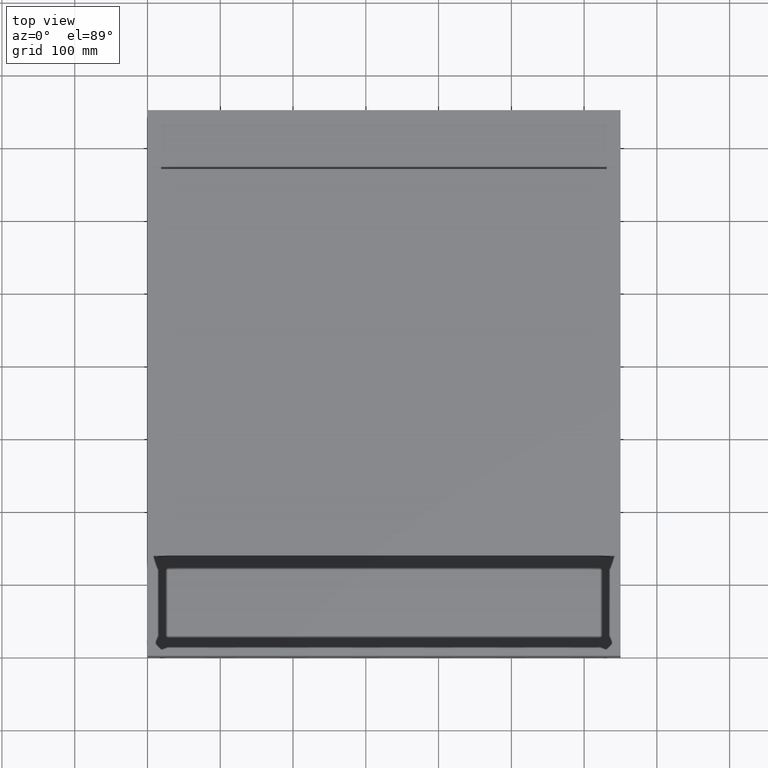
[diagram: clean part render]
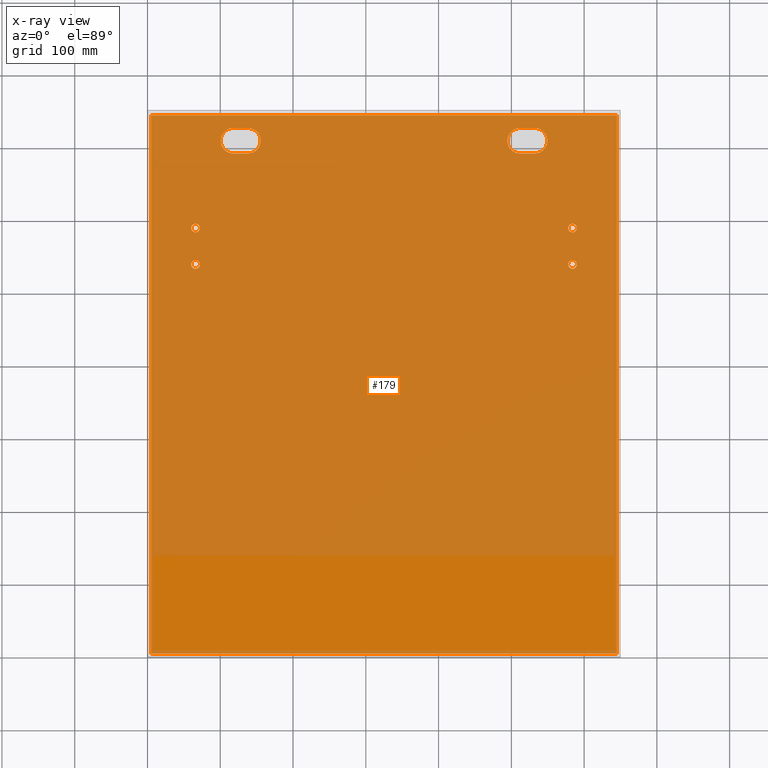
[diagram: x-ray — body ghosted, one internal face saturated and labeled with its STEP entity id]
A machine part, top view, then the same camera in x-ray: the body is ghosted and one INTERNAL B-rep face — a face not visible from any outside direction — is saturated and labeled: STEP entity #179.
In plain terms, the highlighted planar face has unit normal (0, 0, -1).
Its self-contained STEP definition (entity closure, byte-faithful):
#2 = EDGE_LOOP ( 'NONE', ( #342, #5550 ) ) ;
#179 = ADVANCED_FACE ( 'NONE', ( #2171, #5646, #9159, #1303, #4799, #8285, #430 ), #3931, .F. ) ;
#185 = EDGE_CURVE ( 'NONE', #1880, #5691, #6563, .T. ) ;
#205 = CARTESIAN_POINT ( 'NONE',  ( 531.9999999999997726, 692.4999000000001388, -124.9999999999999432 ) ) ;
#288 = LINE ( 'NONE', #3772, #625 ) ;
#342 = ORIENTED_EDGE ( 'NONE', *, *, #2435, .F. ) ;
#344 = CARTESIAN_POINT ( 'NONE',  ( 118.0000000000001990, 709.9999000000000251, -124.9999999999999432 ) ) ;
#370 = DIRECTION ( 'NONE',  ( -1.000000000000000000, 0.0000000000000000000, 0.0000000000000000000 ) ) ;
#375 = VERTEX_POINT ( 'NONE', #6046 ) ;
#430 = FACE_OUTER_BOUND ( 'NONE', #9754, .T. ) ;
#563 = CARTESIAN_POINT ( 'NONE',  ( 118.0000000000001990, 709.9999000000000251, -124.9999999999999432 ) ) ;
#625 = VECTOR ( 'NONE', #7269, 1000.000000000000000 ) ;
#634 = VECTOR ( 'NONE', #2220, 1000.000000000000000 ) ;
#672 = VECTOR ( 'NONE', #6943, 1000.000000000000000 ) ;
#703 = AXIS2_PLACEMENT_3D ( 'NONE', #563, #4052, #7551 ) ;
#717 = CARTESIAN_POINT ( 'NONE',  ( 531.9999999999997726, 709.9999000000000251, -124.9999999999999432 ) ) ;
#751 = CARTESIAN_POINT ( 'NONE',  ( 584.0000000000001137, 589.9999000000000251, -124.9999999999999432 ) ) ;
#762 = LINE ( 'NONE', #4259, #7948 ) ;
#804 = EDGE_CURVE ( 'NONE', #3519, #8852, #762, .T. ) ;
#887 = DIRECTION ( 'NONE',  ( -1.000000000000000000, 0.0000000000000000000, 0.0000000000000000000 ) ) ;
#890 = LINE ( 'NONE', #4386, #7700 ) ;
#951 = CARTESIAN_POINT ( 'NONE',  ( 118.0000000000001990, 727.4999000000001388, -124.9999999999999432 ) ) ;
#1038 = ORIENTED_EDGE ( 'NONE', *, *, #1102, .F. ) ;
#1049 = CARTESIAN_POINT ( 'NONE',  ( 66.00000000000004263, 539.9999000000000251, -124.9999999999999432 ) ) ;
#1057 = CIRCLE ( 'NONE', #2531, 6.000000000000005329 ) ;
#1102 = EDGE_CURVE ( 'NONE', #375, #5691, #288, .T. ) ;
#1145 = CARTESIAN_POINT ( 'NONE',  ( 66.00000000000004263, 589.9999000000000251, -124.9999999999999432 ) ) ;
#1222 = VECTOR ( 'NONE', #5102, 1000.000000000000000 ) ;
#1261 = ORIENTED_EDGE ( 'NONE', *, *, #6304, .F. ) ;
#1303 = FACE_BOUND ( 'NONE', #5128, .T. ) ;
#1304 = DIRECTION ( 'NONE',  ( -0.0000000000000000000, -0.0000000000000000000, 1.000000000000000000 ) ) ;
#1379 = DIRECTION ( 'NONE',  ( -1.000000000000000000, 0.0000000000000000000, 0.0000000000000000000 ) ) ;
#1430 = AXIS2_PLACEMENT_3D ( 'NONE', #1049, #4543, #8035 ) ;
#1484 = AXIS2_PLACEMENT_3D ( 'NONE', #5246, #8751, #887 ) ;
#1606 = ORIENTED_EDGE ( 'NONE', *, *, #6949, .F. ) ;
#1612 = CARTESIAN_POINT ( 'NONE',  ( 118.0000000000002274, 692.4999000000001388, -124.9999999999999432 ) ) ;
#1880 = VERTEX_POINT ( 'NONE', #8261 ) ;
#1931 = CIRCLE ( 'NONE', #8326, 6.000000000000019540 ) ;
#2033 = EDGE_CURVE ( 'NONE', #2711, #5774, #2467, .T. ) ;
#2171 = FACE_BOUND ( 'NONE', #9114, .T. ) ;
#2220 = DIRECTION ( 'NONE',  ( 1.000000000000000000, 0.0000000000000000000, 0.0000000000000000000 ) ) ;
#2254 = CARTESIAN_POINT ( 'NONE',  ( 5.000000000000004441, 744.9999000000000251, -124.9999999999999432 ) ) ;
#2295 = CIRCLE ( 'NONE', #8716, 6.000000000000005329 ) ;
#2380 = VERTEX_POINT ( 'NONE', #10987 ) ;
#2391 = DIRECTION ( 'NONE',  ( -0.0000000000000000000, -0.0000000000000000000, 1.000000000000000000 ) ) ;
#2415 = DIRECTION ( 'NONE',  ( -0.0000000000000000000, -0.0000000000000000000, 1.000000000000000000 ) ) ;
#2435 = EDGE_CURVE ( 'NONE', #11115, #2917, #3007, .T. ) ;
#2467 = CIRCLE ( 'NONE', #8869, 17.49999999999996092 ) ;
#2481 = DIRECTION ( 'NONE',  ( -0.0000000000000000000, -0.0000000000000000000, 1.000000000000000000 ) ) ;
#2531 = AXIS2_PLACEMENT_3D ( 'NONE', #751, #4248, #7738 ) ;
#2554 = DIRECTION ( 'NONE',  ( -0.0000000000000000000, -0.0000000000000000000, 1.000000000000000000 ) ) ;
#2571 = CARTESIAN_POINT ( 'NONE',  ( 578.0000000000001137, 539.9999000000000251, -124.9999999999999432 ) ) ;
#2624 = EDGE_CURVE ( 'NONE', #5774, #8456, #8045, .T. ) ;
#2711 = VERTEX_POINT ( 'NONE', #3856 ) ;
#2884 = AXIS2_PLACEMENT_3D ( 'NONE', #10412, #2554, #6040 ) ;
#2917 = VERTEX_POINT ( 'NONE', #8630 ) ;
#3007 = CIRCLE ( 'NONE', #9422, 6.000000000000019540 ) ;
#3024 = EDGE_CURVE ( 'NONE', #3623, #5744, #1931, .T. ) ;
#3043 = VERTEX_POINT ( 'NONE', #6421 ) ;
#3075 = DIRECTION ( 'NONE',  ( -1.000000000000000000, 0.0000000000000000000, -0.0000000000000000000 ) ) ;
#3088 = ORIENTED_EDGE ( 'NONE', *, *, #9605, .F. ) ;
#3149 = EDGE_CURVE ( 'NONE', #5888, #8588, #2295, .T. ) ;
#3253 = CARTESIAN_POINT ( 'NONE',  ( 60.00000000000002842, 589.9999000000000251, -124.9999999999999432 ) ) ;
#3294 = VERTEX_POINT ( 'NONE', #8718 ) ;
#3327 = CIRCLE ( 'NONE', #9734, 17.49999999999996092 ) ;
#3441 = CIRCLE ( 'NONE', #9842, 17.49999999999996092 ) ;
#3455 = ORIENTED_EDGE ( 'NONE', *, *, #185, .T. ) ;
#3460 = CARTESIAN_POINT ( 'NONE',  ( 5.000000000000004441, 1386.199868759761557, -124.9999999999999432 ) ) ;
#3510 = ORIENTED_EDGE ( 'NONE', *, *, #4199, .T. ) ;
#3519 = VERTEX_POINT ( 'NONE', #9164 ) ;
#3623 = VERTEX_POINT ( 'NONE', #3253 ) ;
#3693 = DIRECTION ( 'NONE',  ( 1.000000000000000000, 0.0000000000000000000, 0.0000000000000000000 ) ) ;
#3772 = CARTESIAN_POINT ( 'NONE',  ( 645.0000000000000000, 1386.199868759761557, -124.9999999999999432 ) ) ;
#3803 = CARTESIAN_POINT ( 'NONE',  ( 5.000000000000004441, 744.9999000000000251, -124.9999999999999432 ) ) ;
#3836 = DIRECTION ( 'NONE',  ( -0.0000000000000000000, -0.0000000000000000000, 1.000000000000000000 ) ) ;
#3856 = CARTESIAN_POINT ( 'NONE',  ( 494.4999999999998295, 709.9999000000000251, -124.9999999999999432 ) ) ;
#3886 = VERTEX_POINT ( 'NONE', #3803 ) ;
#3931 = PLANE ( 'NONE',  #7581 ) ;
#4047 = CARTESIAN_POINT ( 'NONE',  ( 72.00000000000005684, 589.9999000000000251, -124.9999999999999432 ) ) ;
#4052 = DIRECTION ( 'NONE',  ( -0.0000000000000000000, -0.0000000000000000000, 1.000000000000000000 ) ) ;
#4055 = ORIENTED_EDGE ( 'NONE', *, *, #3149, .F. ) ;
#4199 = EDGE_CURVE ( 'NONE', #3886, #1880, #11303, .T. ) ;
#4208 = DIRECTION ( 'NONE',  ( -0.0000000000000000000, -0.0000000000000000000, 1.000000000000000000 ) ) ;
#4248 = DIRECTION ( 'NONE',  ( -0.0000000000000000000, -0.0000000000000000000, 1.000000000000000000 ) ) ;
#4259 = CARTESIAN_POINT ( 'NONE',  ( 531.9999999999997726, 727.4999000000001388, -124.9999999999999432 ) ) ;
#4386 = CARTESIAN_POINT ( 'NONE',  ( 118.0000000000002274, 727.4999000000001388, -124.9999999999999432 ) ) ;
#4392 = EDGE_LOOP ( 'NONE', ( #4055, #3088 ) ) ;
#4543 = DIRECTION ( 'NONE',  ( -0.0000000000000000000, -0.0000000000000000000, 1.000000000000000000 ) ) ;
#4602 = EDGE_CURVE ( 'NONE', #9411, #4919, #9458, .T. ) ;
#4643 = DIRECTION ( 'NONE',  ( -0.0000000000000000000, -0.0000000000000000000, 1.000000000000000000 ) ) ;
#4730 = CARTESIAN_POINT ( 'NONE',  ( 66.00000000000004263, 589.9999000000000251, -124.9999999999999432 ) ) ;
#4799 = FACE_BOUND ( 'NONE', #2, .T. ) ;
#4800 = DIRECTION ( 'NONE',  ( -1.000000000000000000, 0.0000000000000000000, 0.0000000000000000000 ) ) ;
#4854 = EDGE_CURVE ( 'NONE', #2917, #11115, #6356, .T. ) ;
#4919 = VERTEX_POINT ( 'NONE', #8209 ) ;
#4952 = AXIS2_PLACEMENT_3D ( 'NONE', #9160, #1304, #4800 ) ;
#4989 = EDGE_CURVE ( 'NONE', #375, #3886, #10110, .T. ) ;
#5102 = DIRECTION ( 'NONE',  ( 1.000000000000000000, 0.0000000000000000000, 0.0000000000000000000 ) ) ;
#5108 = CARTESIAN_POINT ( 'NONE',  ( 531.9999999999997726, 692.4999000000001388, -124.9999999999999432 ) ) ;
#5128 = EDGE_LOOP ( 'NONE', ( #1261, #6467 ) ) ;
#5246 = CARTESIAN_POINT ( 'NONE',  ( 138.0000000000001990, 709.9999000000000251, -124.9999999999999432 ) ) ;
#5250 = AXIS2_PLACEMENT_3D ( 'NONE', #10273, #2415, #5895 ) ;
#5266 = CARTESIAN_POINT ( 'NONE',  ( 118.0000000000001990, 692.4999000000001388, -124.9999999999999432 ) ) ;
#5550 = ORIENTED_EDGE ( 'NONE', *, *, #4854, .F. ) ;
#5586 = EDGE_CURVE ( 'NONE', #8852, #2711, #10195, .T. ) ;
#5605 = EDGE_LOOP ( 'NONE', ( #6924, #10378, #1606, #11169, #10206 ) ) ;
#5629 = CIRCLE ( 'NONE', #703, 17.49999999999996092 ) ;
#5646 = FACE_BOUND ( 'NONE', #5605, .T. ) ;
#5691 = VERTEX_POINT ( 'NONE', #8779 ) ;
#5718 = CARTESIAN_POINT ( 'NONE',  ( 584.0000000000001137, 539.9999000000000251, -124.9999999999999432 ) ) ;
#5733 = DIRECTION ( 'NONE',  ( -1.000000000000000000, 0.0000000000000000000, 0.0000000000000000000 ) ) ;
#5744 = VERTEX_POINT ( 'NONE', #4047 ) ;
#5749 = VECTOR ( 'NONE', #3693, 1000.000000000000000 ) ;
#5774 = VERTEX_POINT ( 'NONE', #7604 ) ;
#5876 = DIRECTION ( 'NONE',  ( -1.000000000000000000, 0.0000000000000000000, 0.0000000000000000000 ) ) ;
#5888 = VERTEX_POINT ( 'NONE', #2571 ) ;
#5895 = DIRECTION ( 'NONE',  ( -1.000000000000000000, 0.0000000000000000000, 0.0000000000000000000 ) ) ;
#5965 = DIRECTION ( 'NONE',  ( -1.000000000000000000, 0.0000000000000000000, 0.0000000000000000000 ) ) ;
#6023 = AXIS2_PLACEMENT_3D ( 'NONE', #4730, #8222, #370 ) ;
#6040 = DIRECTION ( 'NONE',  ( -1.000000000000000000, 0.0000000000000000000, 0.0000000000000000000 ) ) ;
#6046 = CARTESIAN_POINT ( 'NONE',  ( 645.0000000000000000, 744.9999000000000251, -124.9999999999999432 ) ) ;
#6192 = ORIENTED_EDGE ( 'NONE', *, *, #4989, .T. ) ;
#6285 = EDGE_CURVE ( 'NONE', #8456, #3519, #3441, .T. ) ;
#6304 = EDGE_CURVE ( 'NONE', #3043, #6462, #7823, .T. ) ;
#6356 = CIRCLE ( 'NONE', #1430, 6.000000000000019540 ) ;
#6418 = CIRCLE ( 'NONE', #1484, 17.49999999999996092 ) ;
#6421 = CARTESIAN_POINT ( 'NONE',  ( 578.0000000000001137, 589.9999000000000251, -124.9999999999999432 ) ) ;
#6462 = VERTEX_POINT ( 'NONE', #10042 ) ;
#6467 = ORIENTED_EDGE ( 'NONE', *, *, #6636, .F. ) ;
#6563 = LINE ( 'NONE', #10069, #634 ) ;
#6636 = EDGE_CURVE ( 'NONE', #6462, #3043, #1057, .T. ) ;
#6688 = CARTESIAN_POINT ( 'NONE',  ( 590.0000000000001137, 539.9999000000000251, -124.9999999999999432 ) ) ;
#6924 = ORIENTED_EDGE ( 'NONE', *, *, #4602, .F. ) ;
#6943 = DIRECTION ( 'NONE',  ( -0.0000000000000000000, -1.000000000000000000, -0.0000000000000000000 ) ) ;
#6949 = EDGE_CURVE ( 'NONE', #11057, #3294, #5629, .T. ) ;
#7093 = ORIENTED_EDGE ( 'NONE', *, *, #804, .F. ) ;
#7172 = ORIENTED_EDGE ( 'NONE', *, *, #6285, .F. ) ;
#7269 = DIRECTION ( 'NONE',  ( -0.0000000000000000000, -1.000000000000000000, -0.0000000000000000000 ) ) ;
#7324 = DIRECTION ( 'NONE',  ( -1.000000000000000000, 0.0000000000000000000, 0.0000000000000000000 ) ) ;
#7418 = CARTESIAN_POINT ( 'NONE',  ( 5.000000000000004441, 1386.199868759761557, -124.9999999999999432 ) ) ;
#7551 = DIRECTION ( 'NONE',  ( -1.000000000000000000, 0.0000000000000000000, 0.0000000000000000000 ) ) ;
#7581 = AXIS2_PLACEMENT_3D ( 'NONE', #7418, #10931, #3075 ) ;
#7604 = CARTESIAN_POINT ( 'NONE',  ( 511.9999999999997726, 692.4999000000001388, -124.9999999999999432 ) ) ;
#7700 = VECTOR ( 'NONE', #7886, 1000.000000000000000 ) ;
#7702 = DIRECTION ( 'NONE',  ( -1.000000000000000000, 0.0000000000000000000, 0.0000000000000000000 ) ) ;
#7720 = ORIENTED_EDGE ( 'NONE', *, *, #2624, .F. ) ;
#7738 = DIRECTION ( 'NONE',  ( -1.000000000000000000, 0.0000000000000000000, 0.0000000000000000000 ) ) ;
#7747 = DIRECTION ( 'NONE',  ( -1.000000000000000000, 0.0000000000000000000, 0.0000000000000000000 ) ) ;
#7823 = CIRCLE ( 'NONE', #2884, 6.000000000000005329 ) ;
#7886 = DIRECTION ( 'NONE',  ( -1.000000000000000000, 0.0000000000000000000, 0.0000000000000000000 ) ) ;
#7948 = VECTOR ( 'NONE', #7747, 1000.000000000000000 ) ;
#8012 = EDGE_CURVE ( 'NONE', #5744, #3623, #10969, .T. ) ;
#8035 = DIRECTION ( 'NONE',  ( -1.000000000000000000, 0.0000000000000000000, 0.0000000000000000000 ) ) ;
#8045 = LINE ( 'NONE', #205, #5749 ) ;
#8132 = DIRECTION ( 'NONE',  ( -1.000000000000000000, 0.0000000000000000000, 0.0000000000000000000 ) ) ;
#8209 = CARTESIAN_POINT ( 'NONE',  ( 138.0000000000001990, 692.4999000000000251, -124.9999999999999432 ) ) ;
#8222 = DIRECTION ( 'NONE',  ( -0.0000000000000000000, -0.0000000000000000000, 1.000000000000000000 ) ) ;
#8261 = CARTESIAN_POINT ( 'NONE',  ( 5.000000000000004441, 5.000000000000000000, -124.9999999999999432 ) ) ;
#8285 = FACE_BOUND ( 'NONE', #9571, .T. ) ;
#8326 = AXIS2_PLACEMENT_3D ( 'NONE', #1145, #4643, #8132 ) ;
#8456 = VERTEX_POINT ( 'NONE', #5108 ) ;
#8588 = VERTEX_POINT ( 'NONE', #6688 ) ;
#8630 = CARTESIAN_POINT ( 'NONE',  ( 72.00000000000005684, 539.9999000000000251, -124.9999999999999432 ) ) ;
#8716 = AXIS2_PLACEMENT_3D ( 'NONE', #5718, #9226, #1379 ) ;
#8718 = CARTESIAN_POINT ( 'NONE',  ( 100.5000000000002416, 709.9999000000000251, -124.9999999999999432 ) ) ;
#8751 = DIRECTION ( 'NONE',  ( -0.0000000000000000000, -0.0000000000000000000, 1.000000000000000000 ) ) ;
#8779 = CARTESIAN_POINT ( 'NONE',  ( 645.0000000000000000, 5.000000000000000000, -124.9999999999999432 ) ) ;
#8852 = VERTEX_POINT ( 'NONE', #10761 ) ;
#8869 = AXIS2_PLACEMENT_3D ( 'NONE', #10335, #2481, #5965 ) ;
#8916 = CARTESIAN_POINT ( 'NONE',  ( 60.00000000000002842, 539.9999000000000251, -124.9999999999999432 ) ) ;
#9114 = EDGE_LOOP ( 'NONE', ( #7093, #7172, #7720, #9632, #11342 ) ) ;
#9159 = FACE_BOUND ( 'NONE', #4392, .T. ) ;
#9160 = CARTESIAN_POINT ( 'NONE',  ( 584.0000000000001137, 539.9999000000000251, -124.9999999999999432 ) ) ;
#9164 = CARTESIAN_POINT ( 'NONE',  ( 531.9999999999997726, 727.4999000000001388, -124.9999999999999432 ) ) ;
#9178 = EDGE_CURVE ( 'NONE', #4919, #2380, #6418, .T. ) ;
#9226 = DIRECTION ( 'NONE',  ( -0.0000000000000000000, -0.0000000000000000000, 1.000000000000000000 ) ) ;
#9411 = VERTEX_POINT ( 'NONE', #5266 ) ;
#9422 = AXIS2_PLACEMENT_3D ( 'NONE', #10255, #2391, #5876 ) ;
#9458 = LINE ( 'NONE', #1612, #1222 ) ;
#9571 = EDGE_LOOP ( 'NONE', ( #10782, #10720 ) ) ;
#9605 = EDGE_CURVE ( 'NONE', #8588, #5888, #9918, .T. ) ;
#9632 = ORIENTED_EDGE ( 'NONE', *, *, #2033, .F. ) ;
#9734 = AXIS2_PLACEMENT_3D ( 'NONE', #344, #3836, #7324 ) ;
#9754 = EDGE_LOOP ( 'NONE', ( #1038, #6192, #3510, #3455 ) ) ;
#9827 = EDGE_CURVE ( 'NONE', #2380, #11057, #890, .T. ) ;
#9842 = AXIS2_PLACEMENT_3D ( 'NONE', #717, #4208, #7702 ) ;
#9918 = CIRCLE ( 'NONE', #4952, 6.000000000000005329 ) ;
#10042 = CARTESIAN_POINT ( 'NONE',  ( 590.0000000000001137, 589.9999000000000251, -124.9999999999999432 ) ) ;
#10069 = CARTESIAN_POINT ( 'NONE',  ( 5.000000000000004441, 5.000000000000000000, -124.9999999999999432 ) ) ;
#10110 = LINE ( 'NONE', #2254, #11126 ) ;
#10195 = CIRCLE ( 'NONE', #5250, 17.49999999999996092 ) ;
#10206 = ORIENTED_EDGE ( 'NONE', *, *, #9178, .F. ) ;
#10255 = CARTESIAN_POINT ( 'NONE',  ( 66.00000000000004263, 539.9999000000000251, -124.9999999999999432 ) ) ;
#10273 = CARTESIAN_POINT ( 'NONE',  ( 511.9999999999997726, 709.9999000000000251, -124.9999999999999432 ) ) ;
#10335 = CARTESIAN_POINT ( 'NONE',  ( 511.9999999999997726, 709.9999000000000251, -124.9999999999999432 ) ) ;
#10378 = ORIENTED_EDGE ( 'NONE', *, *, #11304, .F. ) ;
#10412 = CARTESIAN_POINT ( 'NONE',  ( 584.0000000000001137, 589.9999000000000251, -124.9999999999999432 ) ) ;
#10720 = ORIENTED_EDGE ( 'NONE', *, *, #8012, .F. ) ;
#10761 = CARTESIAN_POINT ( 'NONE',  ( 511.9999999999997726, 727.4999000000001388, -124.9999999999999432 ) ) ;
#10782 = ORIENTED_EDGE ( 'NONE', *, *, #3024, .F. ) ;
#10931 = DIRECTION ( 'NONE',  ( 0.0000000000000000000, 0.0000000000000000000, -1.000000000000000000 ) ) ;
#10969 = CIRCLE ( 'NONE', #6023, 6.000000000000019540 ) ;
#10987 = CARTESIAN_POINT ( 'NONE',  ( 138.0000000000001990, 727.4999000000001388, -124.9999999999999432 ) ) ;
#11057 = VERTEX_POINT ( 'NONE', #951 ) ;
#11115 = VERTEX_POINT ( 'NONE', #8916 ) ;
#11126 = VECTOR ( 'NONE', #5733, 1000.000000000000000 ) ;
#11169 = ORIENTED_EDGE ( 'NONE', *, *, #9827, .F. ) ;
#11303 = LINE ( 'NONE', #3460, #672 ) ;
#11304 = EDGE_CURVE ( 'NONE', #3294, #9411, #3327, .T. ) ;
#11342 = ORIENTED_EDGE ( 'NONE', *, *, #5586, .F. ) ;